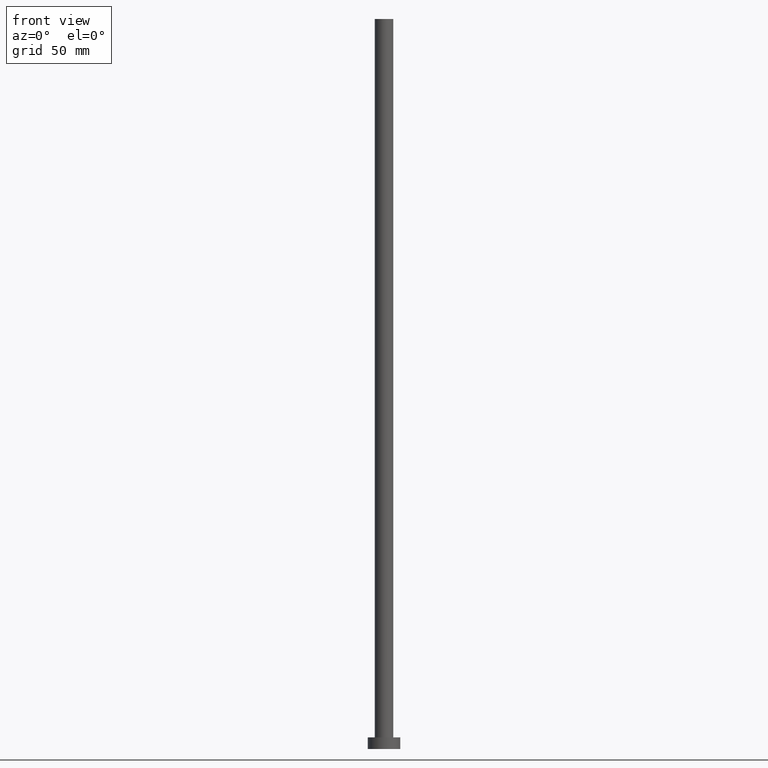
[diagram: clean part render]
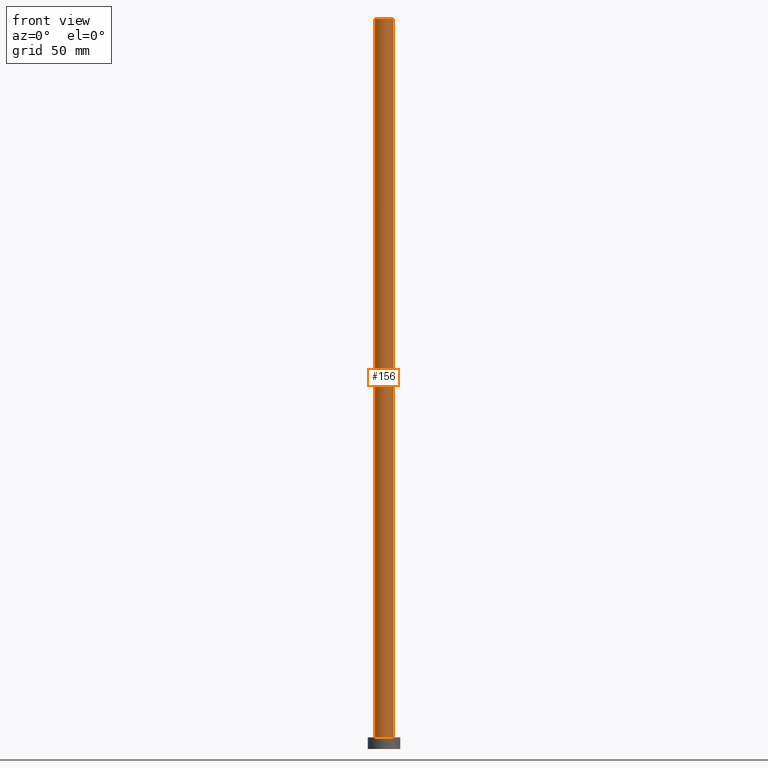
[diagram: same view with one face highlighted and labeled with its STEP entity id]
A machine part, front view. The second image highlights one B-rep face of the part: STEP entity #156.
In plain terms, the highlighted cylindrical surface (edge-blend (fillet) strip) has radius 4 mm, axis along (-0, -0, -1).
Its self-contained STEP definition (entity closure, byte-faithful):
#2 = ORIENTED_EDGE ( 'NONE', *, *, #74, .F. ) ;
#4 = LINE ( 'NONE', #80, #190 ) ;
#6 = ORIENTED_EDGE ( 'NONE', *, *, #35, .F. ) ;
#7 = ORIENTED_EDGE ( 'NONE', *, *, #10, .T. ) ;
#10 = EDGE_CURVE ( 'NONE', #60, #192, #199, .T. ) ;
#15 = CIRCLE ( 'NONE', #220, 4.000000000000000000 ) ;
#35 = EDGE_CURVE ( 'NONE', #238, #192, #4, .T. ) ;
#43 = DIRECTION ( 'NONE',  ( 0.000000000000000000, 0.000000000000000000, 1.000000000000000000 ) ) ;
#52 = CARTESIAN_POINT ( 'NONE',  ( 0.000000000000000000, 0.000000000000000000, 315.0000000000000000 ) ) ;
#55 = DIRECTION ( 'NONE',  ( -1.000000000000000000, 0.000000000000000000, 0.000000000000000000 ) ) ;
#60 = VERTEX_POINT ( 'NONE', #203 ) ;
#66 = DIRECTION ( 'NONE',  ( -0.000000000000000000, -0.000000000000000000, -1.000000000000000000 ) ) ;
#71 = VECTOR ( 'NONE', #72, 1000.000000000000000 ) ;
#72 = DIRECTION ( 'NONE',  ( -0.000000000000000000, -0.000000000000000000, -1.000000000000000000 ) ) ;
#73 = CARTESIAN_POINT ( 'NONE',  ( 4.000000000000000000, 4.898587196589412829E-16, 5.000000000000000000 ) ) ;
#74 = EDGE_CURVE ( 'NONE', #144, #238, #15, .T. ) ;
#80 = CARTESIAN_POINT ( 'NONE',  ( 4.000000000000000000, 4.898587196589412829E-16, 315.0000000000000000 ) ) ;
#91 = CARTESIAN_POINT ( 'NONE',  ( 0.000000000000000000, 0.000000000000000000, 315.0000000000000000 ) ) ;
#95 = DIRECTION ( 'NONE',  ( -0.000000000000000000, -0.000000000000000000, -1.000000000000000000 ) ) ;
#100 = CARTESIAN_POINT ( 'NONE',  ( 4.000000000000000000, 4.898587196589412829E-16, 315.0000000000000000 ) ) ;
#112 = LINE ( 'NONE', #170, #71 ) ;
#124 = ORIENTED_EDGE ( 'NONE', *, *, #210, .T. ) ;
#132 = DIRECTION ( 'NONE',  ( 0.000000000000000000, 0.000000000000000000, 1.000000000000000000 ) ) ;
#144 = VERTEX_POINT ( 'NONE', #152 ) ;
#152 = CARTESIAN_POINT ( 'NONE',  ( -4.000000000000000000, 0.000000000000000000, 315.0000000000000000 ) ) ;
#156 = ADVANCED_FACE ( 'NONE', ( #227 ), #229, .T. ) ;
#161 = CARTESIAN_POINT ( 'NONE',  ( 0.000000000000000000, 0.000000000000000000, 5.000000000000000000 ) ) ;
#169 = DIRECTION ( 'NONE',  ( 1.000000000000000000, 0.000000000000000000, 0.000000000000000000 ) ) ;
#170 = CARTESIAN_POINT ( 'NONE',  ( -4.000000000000000000, 0.000000000000000000, 315.0000000000000000 ) ) ;
#190 = VECTOR ( 'NONE', #66, 1000.000000000000000 ) ;
#192 = VERTEX_POINT ( 'NONE', #73 ) ;
#193 = EDGE_LOOP ( 'NONE', ( #6, #2, #124, #7 ) ) ;
#199 = CIRCLE ( 'NONE', #204, 4.000000000000000000 ) ;
#203 = CARTESIAN_POINT ( 'NONE',  ( -4.000000000000000000, 0.000000000000000000, 5.000000000000000000 ) ) ;
#204 = AXIS2_PLACEMENT_3D ( 'NONE', #161, #43, #241 ) ;
#210 = EDGE_CURVE ( 'NONE', #144, #60, #112, .T. ) ;
#220 = AXIS2_PLACEMENT_3D ( 'NONE', #52, #132, #169 ) ;
#227 = FACE_OUTER_BOUND ( 'NONE', #193, .T. ) ;
#229 = CYLINDRICAL_SURFACE ( 'NONE', #234, 4.000000000000000000 ) ;
#234 = AXIS2_PLACEMENT_3D ( 'NONE', #91, #95, #55 ) ;
#238 = VERTEX_POINT ( 'NONE', #100 ) ;
#241 = DIRECTION ( 'NONE',  ( 1.000000000000000000, 0.000000000000000000, 0.000000000000000000 ) ) ;